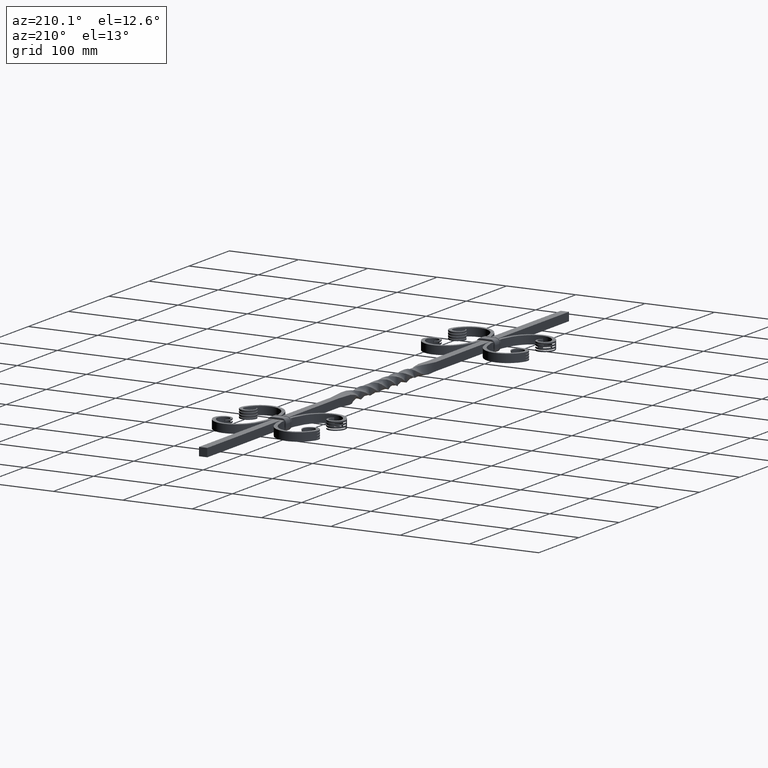
[diagram: clean part render]
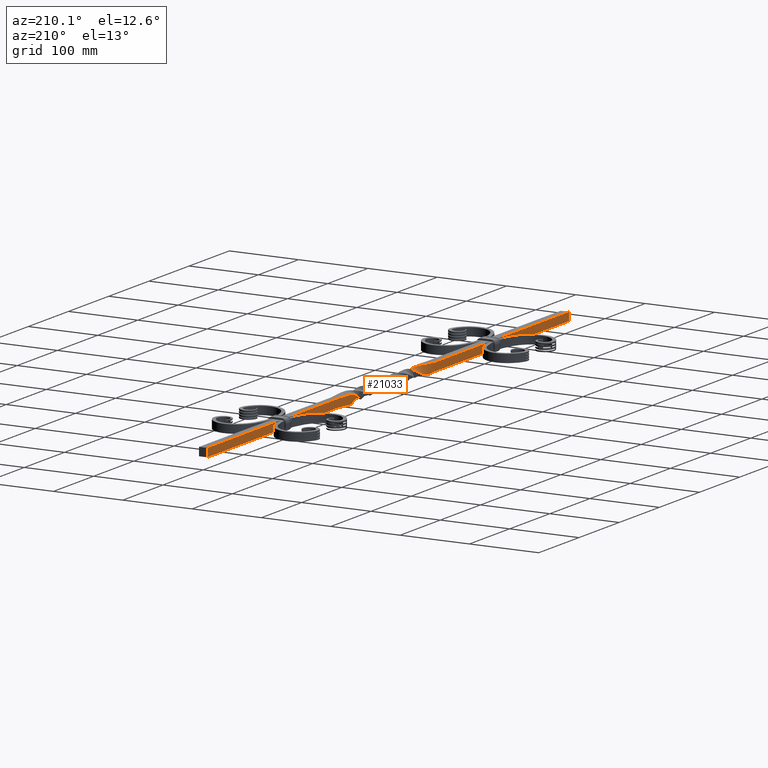
[diagram: same view with one face highlighted and labeled with its STEP entity id]
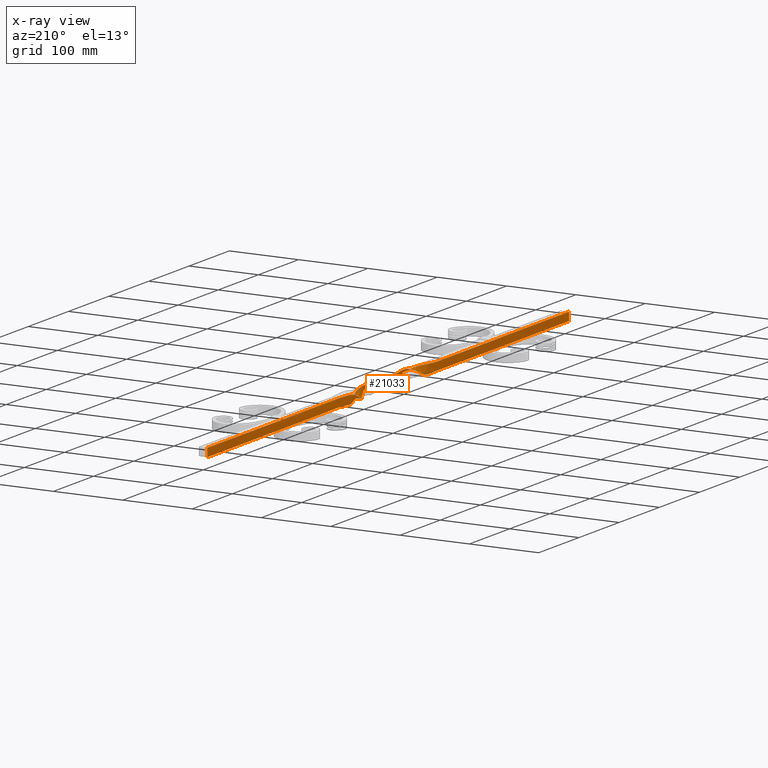
[diagram: x-ray of the same camera — body ghosted, the highlighted face saturated]
A machine part, auxiliary view. The second image highlights one B-rep face of the part: STEP entity #21033.
The next image is the same camera in x-ray: the body ghosted, the highlighted face saturated — about 0% of this face is hidden behind the body in this view.
In plain terms, the highlighted face is a freeform B-spline surface patch.
Its self-contained STEP definition (entity closure, byte-faithful):
#36 = CARTESIAN_POINT ( 'NONE',  ( -6.129119403990754833, 590.5783932836168333, -2.170316241242499444 ) ) ;
#105 = CARTESIAN_POINT ( 'NONE',  ( -5.944980505390075720, 281.2418513736877230, -2.015738939510967498 ) ) ;
#183 = CARTESIAN_POINT ( 'NONE',  ( -6.006959643480516142, 759.3733596218474986, -2.009180187340980694 ) ) ;
#268 = CARTESIAN_POINT ( 'NONE',  ( -6.205485267938093408, 590.5783932836170607, 1.941218649400453300 ) ) ;
#600 = CARTESIAN_POINT ( 'NONE',  ( -6.000000218979613109, 65.62500002364450324, -6.000000040986010141 ) ) ;
#672 = FACE_OUTER_BOUND ( 'NONE', #4373, .T. ) ;
#675 = CARTESIAN_POINT ( 'NONE',  ( -6.003784774164359739, 646.8728165821406719, -6.020221256834650703 ) ) ;
#751 = CARTESIAN_POINT ( 'NONE',  ( 16.02030561610884973, 393.8022901579926724, 0.9457429766359213286 ) ) ;
#831 = CARTESIAN_POINT ( 'NONE',  ( -4.932763854690715988, 562.2856595492202132, 5.800247441439328355 ) ) ;
#904 = CARTESIAN_POINT ( 'NONE',  ( 16.02030561610881776, 506.1977098420063044, -0.9457429766344983557 ) ) ;
#1498 = CARTESIAN_POINT ( 'NONE',  ( -6.281851131885451522, 590.5783932836168333, 6.052753540043402047 ) ) ;
#1569 = CARTESIAN_POINT ( 'NONE',  ( -5.800247441439065454, 337.7143404507785363, 4.932763854690907834 ) ) ;
#1708 = CARTESIAN_POINT ( 'NONE',  ( -6.281851131885397344, 309.4216067163823709, -6.052753540043469549 ) ) ;
#1786 = CARTESIAN_POINT ( 'NONE',  ( -5.997517825096862154, 224.9994149548763005, 1.996725862368148752 ) ) ;
#1863 = CARTESIAN_POINT ( 'NONE',  ( -5.996049777498382305, 224.9994149548761868, -2.001130005163600512 ) ) ;
#1934 = CARTESIAN_POINT ( 'NONE',  ( 4.709606554279933910, 506.1977098420063044, -10.99545140295070667 ) ) ;
#2011 = CARTESIAN_POINT ( 'NONE',  ( -11.17307251028023884, 449.9999999999993747, -11.17307251028033832 ) ) ;
#2348 = CARTESIAN_POINT ( 'NONE',  ( -5.994581729899899791, 675.0005850451232163, 5.998985872695348220 ) ) ;
#2350 = CARTESIAN_POINT ( 'NONE',  ( -6.000000000000000000, 0.000000000000000000, -6.000000000000000000 ) ) ;
#2424 = CARTESIAN_POINT ( 'NONE',  ( -6.000000000000004441, 0.000000000000000000, 5.999999999999998224 ) ) ;
#2495 = CARTESIAN_POINT ( 'NONE',  ( -6.002843459772035040, 140.6266403781508814, 6.015192010897474795 ) ) ;
#2576 = CARTESIAN_POINT ( 'NONE',  ( -6.000000000000003553, 899.9999999999998863, -6.000000000000000000 ) ) ;
#2659 = CARTESIAN_POINT ( 'NONE',  ( -6.281851131885397344, 309.4216067163823709, -6.052753540043469549 ) ) ;
#3119 = B_SPLINE_CURVE_WITH_KNOTS ( 'NONE', 3,
 ( #2576, #12989, #7692, #12838, #675, #6108, #7842, #9196, #14418, #904, #14644, #9429, #19767, #4170, #11093, #9272, #2659, #21482, #5884, #17949, #4392, #600, #2350 ),
 .UNSPECIFIED., .F., .F.,
 ( 4, 1, 1, 1, 1, 1, 1, 1, 1, 1, 1, 1, 1, 1, 1, 1, 1, 1, 1, 1, 4 ),
 ( 0.000000000000000000, 0.2150539006143591392, 0.2457758864164102386, 0.2764978722184615600, 0.3072198580205128815, 0.3379418438225643140, 0.3687168302277795684, 0.4004128416727378292, 0.4330298781574392075, 0.4665149390787197703, 0.5000000000000004441, 0.5334850609212808958, 0.5669701218425615696, 0.5995871583272629479, 0.6312831697722209867, 0.6620581561774361301, 0.6927801419794874516, 0.7235021277815387730, 0.7542241135835899835, 0.7849460993856411939, 1.000000000000000000 ),
 .UNSPECIFIED. ) ;
#3234 = CARTESIAN_POINT ( 'NONE',  ( -6.020221256834653367, 646.8728165821406719, 6.003784774164355298 ) ) ;
#3244 = VERTEX_POINT ( 'NONE', #20573 ) ;
#3440 = CARTESIAN_POINT ( 'NONE',  ( 16.02030561610881776, 506.1977098420063044, -0.9457429766344983557 ) ) ;
#3520 = CARTESIAN_POINT ( 'NONE',  ( -6.000000159648407383, 834.3749999763465439, 1.999999954330793805 ) ) ;
#3592 = CARTESIAN_POINT ( 'NONE',  ( 0.8538160824207666755, 421.9232045399769504, -11.92570182127442280 ) ) ;
#3677 = CARTESIAN_POINT ( 'NONE',  ( -0.9457429766359252143, 393.8022901579925588, 16.02030561610886039 ) ) ;
#3761 = CARTESIAN_POINT ( 'NONE',  ( -5.999999999999994671, 0.000000000000000000, 2.000000000000000000 ) ) ;
#3974 = EDGE_CURVE ( 'NONE', #3244, #11750, #5626, .T. ) ;
#4170 = CARTESIAN_POINT ( 'NONE',  ( -0.9457429766359252143, 393.8022901579925588, 16.02030561610886039 ) ) ;
#4373 = EDGE_LOOP ( 'NONE', ( #5633, #16597, #20313, #7778 ) ) ;
#4392 = CARTESIAN_POINT ( 'NONE',  ( -6.015192010897480124, 140.6266403781508245, -6.002843459772042145 ) ) ;
#4543 = B_SPLINE_SURFACE_WITH_KNOTS ( 'NONE', 3, 3, ( 
 ( #6685, #13497, #18835, #8481, #20499, #15365, #18764, #1569, #20432, #5025, #6613, #10161, #18688, #22227, #11833, #8552, #1498, #13565, #3234, #11909, #6898, #14076, #14000 ),
 ( #3761, #10303, #19050, #1786, #7128, #15708, #20774, #7207, #7048, #5467, #3592, #12196, #17538, #1934, #15565, #18977, #268, #22373, #5168, #20634, #20845, #3520, #12049 ),
 ( #8854, #19133, #5241, #1863, #17232, #105, #17302, #6972, #8623, #13924, #10526, #8772, #8691, #19208, #10449, #15639, #36, #5315, #17458, #17379, #183, #15796, #13848 ),
 ( #20703, #5394, #10374, #15492, #19282, #12269, #1708, #20923, #10595, #3677, #12343, #2011, #13782, #3440, #12121, #8926, #7424, #12427, #19503, #21000, #5765, #17907, #15872 ) ),
 .UNSPECIFIED., .F., .F., .F.,
 ( 4, 4 ),
 ( 4, 1, 1, 1, 1, 1, 1, 1, 1, 1, 1, 1, 1, 1, 1, 1, 1, 1, 1, 1, 4 ),
 ( 0.000000000000000000, 1.000000000000000000 ),
 ( 0.000000000000000000, 0.2150539006143588061, 0.2457758864164100443, 0.2764978722184612825, 0.3072198580205126039, 0.3379418438225638699, 0.3687168302277790133, 0.4004128416727371076, 0.4330298781574383749, 0.4665149390787190486, 0.4999999999999996114, 0.5334850609212802297, 0.5669701218425607925, 0.5995871583272621708, 0.6312831697722204316, 0.6620581561774356860, 0.6927801419794871185, 0.7235021277815384400, 0.7542241135835897614, 0.7849460993856408608, 1.000000000000000000 ),
 .UNSPECIFIED. ) ;
#5025 = CARTESIAN_POINT ( 'NONE',  ( 16.02030561610885684, 393.8022901579925588, 0.9457429766359338741 ) ) ;
#5168 = CARTESIAN_POINT ( 'NONE',  ( -6.014742429277880831, 646.8728165821399898, 1.995782763831354778 ) ) ;
#5241 = CARTESIAN_POINT ( 'NONE',  ( -6.011075827188995468, 140.6266403781515919, -1.996831636215529171 ) ) ;
#5315 = CARTESIAN_POINT ( 'NONE',  ( -5.965427768018647825, 618.7581486263106854, -1.954397151625252294 ) ) ;
#5394 = CARTESIAN_POINT ( 'NONE',  ( -6.000000218979613109, 65.62500002364450324, -6.000000040986010141 ) ) ;
#5467 = CARTESIAN_POINT ( 'NONE',  ( 10.36495608519392597, 393.8022901579928998, 5.970597189793574344 ) ) ;
#5626 = LINE ( 'NONE', #10508, #19397 ) ;
#5633 = ORIENTED_EDGE ( 'NONE', *, *, #7385, .T. ) ;
#5765 = CARTESIAN_POINT ( 'NONE',  ( -6.002843459772038592, 759.3733596218474986, -6.015192010897478347 ) ) ;
#5844 = CARTESIAN_POINT ( 'NONE',  ( -6.000000000000001776, 899.9999999999998863, 5.999999999999998224 ) ) ;
#5884 = CARTESIAN_POINT ( 'NONE',  ( -6.020221256834651591, 253.1271834178583333, -6.003784774164361515 ) ) ;
#6108 = CARTESIAN_POINT ( 'NONE',  ( -5.985875030647226147, 618.7581486263111401, -5.924533242761492069 ) ) ;
#6613 = CARTESIAN_POINT ( 'NONE',  ( -6.130841793859725719, 421.9232045399774051, -14.82313183498177267 ) ) ;
#6685 = CARTESIAN_POINT ( 'NONE',  ( -6.000000000000001776, 0.000000000000000000, 5.999999999999998224 ) ) ;
#6898 = CARTESIAN_POINT ( 'NONE',  ( -6.015192010897483677, 759.3733596218474986, 6.002843459772034151 ) ) ;
#6972 = CARTESIAN_POINT ( 'NONE',  ( -5.221925050273625857, 337.7143404507785363, -2.222577009395738212 ) ) ;
#7048 = CARTESIAN_POINT ( 'NONE',  ( -7.917712261078329483, 367.2982682768871427, 4.529577538281728266 ) ) ;
#7109 = DIRECTION ( 'NONE',  ( -8.673617379884035472E-16, -2.775557561562891351E-14, 1.000000000000000000 ) ) ;
#7128 = CARTESIAN_POINT ( 'NONE',  ( -6.009263601721118064, 253.1271834178583333, 2.012219246501646186 ) ) ;
#7207 = CARTESIAN_POINT ( 'NONE',  ( -5.511086245856336774, 337.7143404507787636, 1.355093422647585255 ) ) ;
#7385 = EDGE_CURVE ( 'NONE', #18489, #13451, #12872, .T. ) ;
#7424 = CARTESIAN_POINT ( 'NONE',  ( -6.052753540043404712, 590.5783932836168333, -6.281851131885449746 ) ) ;
#7612 = CARTESIAN_POINT ( 'NONE',  ( 14.82313183498101949, 478.0767954600214580, 6.130841793860785316 ) ) ;
#7692 = CARTESIAN_POINT ( 'NONE',  ( -6.002843459772038592, 759.3733596218474986, -6.015192010897478347 ) ) ;
#7778 = ORIENTED_EDGE ( 'NONE', *, *, #19554, .T. ) ;
#7789 = CARTESIAN_POINT ( 'NONE',  ( -6.000000000000001776, 0.000000000000000000, -1.517883041479706208E-15 ) ) ;
#7842 = CARTESIAN_POINT ( 'NONE',  ( -6.052753540043404712, 590.5783932836168333, -6.281851131885449746 ) ) ;
#8062 = CARTESIAN_POINT ( 'NONE',  ( -6.000000000000004441, 0.000000000000000000, 5.999999999999998224 ) ) ;
#8481 = CARTESIAN_POINT ( 'NONE',  ( -5.998985872695350885, 224.9994149548763005, 5.994581729899898015 ) ) ;
#8552 = CARTESIAN_POINT ( 'NONE',  ( -4.932763854690709771, 562.2856595492200995, 5.800247441439327467 ) ) ;
#8623 = CARTESIAN_POINT ( 'NONE',  ( -9.051916331831703744, 367.2982682768875975, -1.126965326021614811 ) ) ;
#8691 = CARTESIAN_POINT ( 'NONE',  ( 0.8538160824198411936, 478.0767954600212306, 11.92570182127425049 ) ) ;
#8772 = CARTESIAN_POINT ( 'NONE',  ( -11.17307251028027082, 449.9999999999996021, -3.724357503426811711 ) ) ;
#8854 = CARTESIAN_POINT ( 'NONE',  ( -6.000000000000000000, 0.000000000000000000, -2.000000000000000000 ) ) ;
#8926 = CARTESIAN_POINT ( 'NONE',  ( -5.800247441439331908, 562.2856595492200995, -4.932763854690709771 ) ) ;
#9196 = CARTESIAN_POINT ( 'NONE',  ( -5.800247441439331908, 562.2856595492200995, -4.932763854690709771 ) ) ;
#9271 = CARTESIAN_POINT ( 'NONE',  ( -6.130841793859691968, 421.9232045399772915, -14.82313183498177622 ) ) ;
#9272 = CARTESIAN_POINT ( 'NONE',  ( -4.932763854690913163, 337.7143404507785363, -5.800247441439064566 ) ) ;
#9427 = CARTESIAN_POINT ( 'NONE',  ( -11.17307251028036141, 449.9999999999993747, 11.17307251028020332 ) ) ;
#9429 = CARTESIAN_POINT ( 'NONE',  ( -11.17307251028023884, 449.9999999999993747, -11.17307251028033832 ) ) ;
#9497 = CARTESIAN_POINT ( 'NONE',  ( -6.281851131885444417, 590.5783932836166059, 6.052753540043399383 ) ) ;
#9673 = EDGE_CURVE ( 'NONE', #11750, #13451, #11288, .T. ) ;
#10161 = CARTESIAN_POINT ( 'NONE',  ( -11.17307251028034187, 449.9999999999993747, 11.17307251028022819 ) ) ;
#10303 = CARTESIAN_POINT ( 'NONE',  ( -6.000000100317209650, 65.62500002364450324, 2.000000132324398994 ) ) ;
#10374 = CARTESIAN_POINT ( 'NONE',  ( -6.015192010897480124, 140.6266403781508245, -6.002843459772042145 ) ) ;
#10449 = CARTESIAN_POINT ( 'NONE',  ( -7.917712261077902269, 532.7017317231113793, -4.529577538282611116 ) ) ;
#10508 = CARTESIAN_POINT ( 'NONE',  ( -6.000000000000001776, 900.0000000000000000, -1.517883041479706208E-15 ) ) ;
#10526 = CARTESIAN_POINT ( 'NONE',  ( 7.838473958701268174, 421.9232045399770641, -9.028271807567081808 ) ) ;
#10595 = CARTESIAN_POINT ( 'NONE',  ( -10.18612040258507179, 367.2982682768875975, -6.783508190324952558 ) ) ;
#11015 = CARTESIAN_POINT ( 'NONE',  ( -5.998985872695351773, 224.9994149548762721, 5.994581729899898015 ) ) ;
#11093 = CARTESIAN_POINT ( 'NONE',  ( -10.18612040258507179, 367.2982682768875975, -6.783508190324952558 ) ) ;
#11168 = CARTESIAN_POINT ( 'NONE',  ( -6.000000040986021688, 65.62500002364458851, 6.000000218979624655 ) ) ;
#11192 = DIRECTION ( 'NONE',  ( -8.673617379884035472E-16, 0.000000000000000000, 1.000000000000000000 ) ) ;
#11288 = B_SPLINE_CURVE_WITH_KNOTS ( 'NONE', 3,
 ( #21405, #19624, #19765, #2348, #16423, #16344, #9497, #831, #18026, #16270, #7612, #9427, #9271, #751, #21565, #21332, #12836, #12759, #17803, #11015, #2495, #11168, #2424 ),
 .UNSPECIFIED., .F., .F.,
 ( 4, 1, 1, 1, 1, 1, 1, 1, 1, 1, 1, 1, 1, 1, 1, 1, 1, 1, 1, 1, 4 ),
 ( 0.000000000000000000, 0.2150539006143591392, 0.2457758864164102386, 0.2764978722184615600, 0.3072198580205131035, 0.3379418438225643140, 0.3687168302277795684, 0.4004128416727378292, 0.4330298781574392075, 0.4665149390787198813, 0.5000000000000004441, 0.5334850609212808958, 0.5669701218425615696, 0.5995871583272629479, 0.6312831697722209867, 0.6620581561774361301, 0.6927801419794874516, 0.7235021277815387730, 0.7542241135835899835, 0.7849460993856411939, 1.000000000000000000 ),
 .UNSPECIFIED. ) ;
#11750 = VERTEX_POINT ( 'NONE', #5844 ) ;
#11833 = CARTESIAN_POINT ( 'NONE',  ( -10.18612040258587648, 532.7017317231113793, 6.783508190323914278 ) ) ;
#11909 = CARTESIAN_POINT ( 'NONE',  ( -5.994581729899900679, 675.0005850451231026, 5.998985872695349109 ) ) ;
#12049 = CARTESIAN_POINT ( 'NONE',  ( -5.999999999999994671, 899.9999999999996589, 2.000000000000000000 ) ) ;
#12121 = CARTESIAN_POINT ( 'NONE',  ( -6.783508190323921383, 532.7017317231113793, -10.18612040258587292 ) ) ;
#12196 = CARTESIAN_POINT ( 'NONE',  ( -11.17307251028029214, 449.9999999999993747, 3.724357503426712679 ) ) ;
#12269 = CARTESIAN_POINT ( 'NONE',  ( -5.924533242761513385, 281.2418513736877230, -5.985875030647205719 ) ) ;
#12343 = CARTESIAN_POINT ( 'NONE',  ( 14.82313183498177622, 421.9232045399774051, -6.130841793859734601 ) ) ;
#12427 = CARTESIAN_POINT ( 'NONE',  ( -5.985875030647226147, 618.7581486263111401, -5.924533242761492069 ) ) ;
#12759 = CARTESIAN_POINT ( 'NONE',  ( -5.985875030647208384, 281.2418513736877230, 5.924533242761508056 ) ) ;
#12836 = CARTESIAN_POINT ( 'NONE',  ( -6.052753540043471325, 309.4216067163823709, 6.281851131885392014 ) ) ;
#12838 = CARTESIAN_POINT ( 'NONE',  ( -5.998985872695353549, 675.0005850451231026, -5.994581729899898015 ) ) ;
#12872 = LINE ( 'NONE', #7789, #20428 ) ;
#12989 = CARTESIAN_POINT ( 'NONE',  ( -6.000000040986008365, 834.3749999763547294, -6.000000218979621103 ) ) ;
#13451 = VERTEX_POINT ( 'NONE', #8062 ) ;
#13497 = CARTESIAN_POINT ( 'NONE',  ( -6.000000040985997707, 65.62500002364450324, 6.000000218979606892 ) ) ;
#13565 = CARTESIAN_POINT ( 'NONE',  ( -5.924533242761493845, 618.7581486263111401, 5.985875030647220818 ) ) ;
#13782 = CARTESIAN_POINT ( 'NONE',  ( -6.130841793860742683, 478.0767954600213443, 14.82313183498101772 ) ) ;
#13848 = CARTESIAN_POINT ( 'NONE',  ( -6.000000000000000000, 899.9999999999992042, -2.000000000000000000 ) ) ;
#13924 = CARTESIAN_POINT ( 'NONE',  ( 4.709606554279003987, 393.8022901579928998, 10.99545140295122359 ) ) ;
#14000 = CARTESIAN_POINT ( 'NONE',  ( -6.000000000000001776, 899.9999999999994316, 5.999999999999998224 ) ) ;
#14076 = CARTESIAN_POINT ( 'NONE',  ( -6.000000218979629985, 834.3749999763547294, 6.000000040986008365 ) ) ;
#14418 = CARTESIAN_POINT ( 'NONE',  ( -6.783508190323921383, 532.7017317231113793, -10.18612040258587292 ) ) ;
#14644 = CARTESIAN_POINT ( 'NONE',  ( -6.130841793860742683, 478.0767954600213443, 14.82313183498101772 ) ) ;
#15365 = CARTESIAN_POINT ( 'NONE',  ( -5.985875030647208384, 281.2418513736877230, 5.924533242761507168 ) ) ;
#15492 = CARTESIAN_POINT ( 'NONE',  ( -5.994581729899902456, 224.9994149548763005, -5.998985872695348220 ) ) ;
#15565 = CARTESIAN_POINT ( 'NONE',  ( -9.051916331831879603, 532.7017317231116067, 1.126965326020651137 ) ) ;
#15639 = CARTESIAN_POINT ( 'NONE',  ( -5.511086245856454013, 562.2856595492196448, -1.355093422647362322 ) ) ;
#15708 = CARTESIAN_POINT ( 'NONE',  ( -5.965427768018633614, 281.2418513736877230, 1.954397151625270501 ) ) ;
#15796 = CARTESIAN_POINT ( 'NONE',  ( -6.000000100317195439, 834.3749999763593905, -2.000000132324402102 ) ) ;
#15872 = CARTESIAN_POINT ( 'NONE',  ( -6.000000000000003553, 899.9999999999994316, -6.000000000000000000 ) ) ;
#16270 = CARTESIAN_POINT ( 'NONE',  ( -0.9457429766345438749, 506.1977098420065317, -16.02030561610882842 ) ) ;
#16344 = CARTESIAN_POINT ( 'NONE',  ( -5.924533242761499174, 618.7581486263111401, 5.985875030647223483 ) ) ;
#16423 = CARTESIAN_POINT ( 'NONE',  ( -6.020221256834654255, 646.8728165821408993, 6.003784774164357074 ) ) ;
#16597 = ORIENTED_EDGE ( 'NONE', *, *, #9673, .F. ) ;
#17232 = CARTESIAN_POINT ( 'NONE',  ( -6.014742429277886160, 253.1271834178585607, -1.995782763831356332 ) ) ;
#17302 = CARTESIAN_POINT ( 'NONE',  ( -6.205485267938084526, 309.4216067163823709, -1.941218649400515694 ) ) ;
#17379 = CARTESIAN_POINT ( 'NONE',  ( -5.997517825096866595, 675.0005850451231026, -1.996725862368148752 ) ) ;
#17458 = CARTESIAN_POINT ( 'NONE',  ( -6.009263601721118953, 646.8728165821406719, -2.012219246501650627 ) ) ;
#17538 = CARTESIAN_POINT ( 'NONE',  ( 7.838473958700427069, 478.0767954600213443, 9.028271807567499252 ) ) ;
#17803 = CARTESIAN_POINT ( 'NONE',  ( -6.003784774164363292, 253.1271834178583333, 6.020221256834645374 ) ) ;
#17907 = CARTESIAN_POINT ( 'NONE',  ( -6.000000040986008365, 834.3749999763547294, -6.000000218979621103 ) ) ;
#17949 = CARTESIAN_POINT ( 'NONE',  ( -5.994581729899902456, 224.9994149548763005, -5.998985872695348220 ) ) ;
#18026 = CARTESIAN_POINT ( 'NONE',  ( -10.18612040258586049, 532.7017317231113793, 6.783508190323913389 ) ) ;
#18489 = VERTEX_POINT ( 'NONE', #21615 ) ;
#18688 = CARTESIAN_POINT ( 'NONE',  ( 14.82313183498100706, 478.0767954600213443, 6.130841793860747124 ) ) ;
#18764 = CARTESIAN_POINT ( 'NONE',  ( -6.052753540043471325, 309.4216067163823709, 6.281851131885391126 ) ) ;
#18835 = CARTESIAN_POINT ( 'NONE',  ( -6.002843459772040369, 140.6266403781508245, 6.015192010897474795 ) ) ;
#18977 = CARTESIAN_POINT ( 'NONE',  ( -5.221925050273579672, 562.2856595492194174, 2.222577009395982017 ) ) ;
#19050 = CARTESIAN_POINT ( 'NONE',  ( -6.006959643480504596, 140.6266403781508245, 2.009180187340975365 ) ) ;
#19133 = CARTESIAN_POINT ( 'NONE',  ( -6.000000159648417153, 65.62500002364450324, -1.999999954330778928 ) ) ;
#19208 = CARTESIAN_POINT ( 'NONE',  ( 10.36495608519437717, 506.1977098420069865, -5.970597189792595572 ) ) ;
#19282 = CARTESIAN_POINT ( 'NONE',  ( -6.020221256834651591, 253.1271834178583333, -6.003784774164361515 ) ) ;
#19397 = VECTOR ( 'NONE', #7109, 1000.000000000000000 ) ;
#19503 = CARTESIAN_POINT ( 'NONE',  ( -6.003784774164359739, 646.8728165821406719, -6.020221256834650703 ) ) ;
#19554 = EDGE_CURVE ( 'NONE', #3244, #18489, #3119, .T. ) ;
#19624 = CARTESIAN_POINT ( 'NONE',  ( -6.000000218979629985, 834.3749999763547294, 6.000000040986008365 ) ) ;
#19765 = CARTESIAN_POINT ( 'NONE',  ( -6.015192010897481900, 759.3733596218468165, 6.002843459772035040 ) ) ;
#19767 = CARTESIAN_POINT ( 'NONE',  ( 14.82313183498177622, 421.9232045399774051, -6.130841793859734601 ) ) ;
#20313 = ORIENTED_EDGE ( 'NONE', *, *, #3974, .F. ) ;
#20428 = VECTOR ( 'NONE', #11192, 1000.000000000000000 ) ;
#20432 = CARTESIAN_POINT ( 'NONE',  ( -6.783508190324956999, 367.2982682768875975, 10.18612040258506291 ) ) ;
#20499 = CARTESIAN_POINT ( 'NONE',  ( -6.003784774164362403, 253.1271834178583333, 6.020221256834646262 ) ) ;
#20573 = CARTESIAN_POINT ( 'NONE',  ( -6.000000000000003553, 899.9999999999998863, -6.000000000000000000 ) ) ;
#20634 = CARTESIAN_POINT ( 'NONE',  ( -5.996049777498376976, 675.0005850451231026, 2.001130005163598291 ) ) ;
#20703 = CARTESIAN_POINT ( 'NONE',  ( -6.000000000000003553, 0.000000000000000000, -6.000000000000000000 ) ) ;
#20774 = CARTESIAN_POINT ( 'NONE',  ( -6.129119403990775261, 309.4216067163823709, 2.170316241242439492 ) ) ;
#20845 = CARTESIAN_POINT ( 'NONE',  ( -6.011075827188999021, 759.3733596218461344, 1.996831636215539607 ) ) ;
#20923 = CARTESIAN_POINT ( 'NONE',  ( -4.932763854690913163, 337.7143404507785363, -5.800247441439064566 ) ) ;
#21000 = CARTESIAN_POINT ( 'NONE',  ( -5.998985872695353549, 675.0005850451231026, -5.994581729899898015 ) ) ;
#21033 = ADVANCED_FACE ( 'NONE', ( #672 ), #4543, .F. ) ;
#21332 = CARTESIAN_POINT ( 'NONE',  ( -5.800247441439065454, 337.7143404507785363, 4.932763854690906058 ) ) ;
#21405 = CARTESIAN_POINT ( 'NONE',  ( -6.000000000000001776, 899.9999999999998863, 5.999999999999998224 ) ) ;
#21482 = CARTESIAN_POINT ( 'NONE',  ( -5.924533242761513385, 281.2418513736877230, -5.985875030647205719 ) ) ;
#21565 = CARTESIAN_POINT ( 'NONE',  ( -6.783508190324950782, 367.2982682768877112, 10.18612040258507001 ) ) ;
#21615 = CARTESIAN_POINT ( 'NONE',  ( -6.000000000000000000, 0.000000000000000000, -6.000000000000000000 ) ) ;
#22227 = CARTESIAN_POINT ( 'NONE',  ( -0.9457429766344888078, 506.1977098420063044, -16.02030561610881065 ) ) ;
#22373 = CARTESIAN_POINT ( 'NONE',  ( -5.944980505390064174, 618.7581486263104580, 2.015738939510984373 ) ) ;